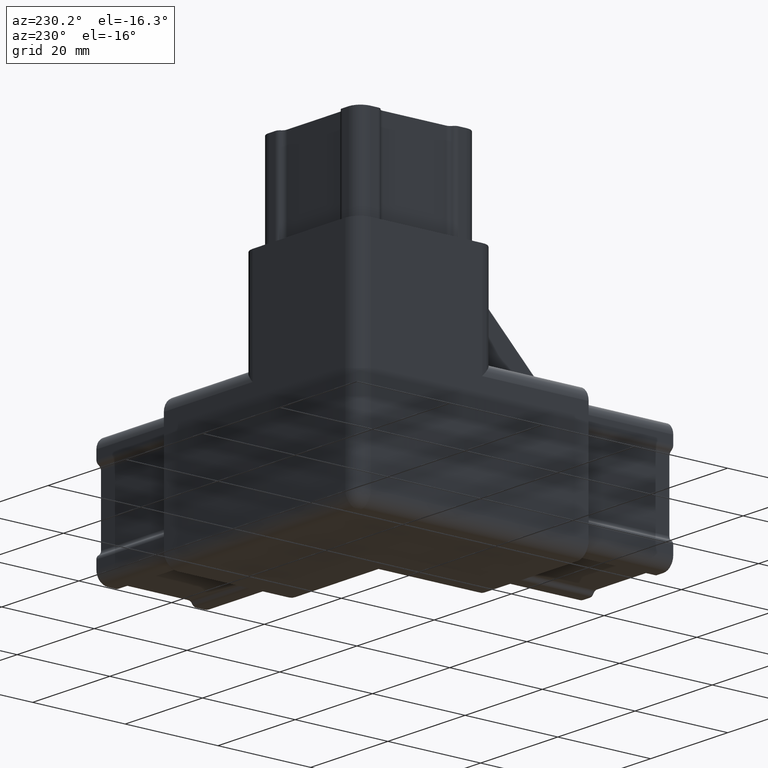
[diagram: clean part render]
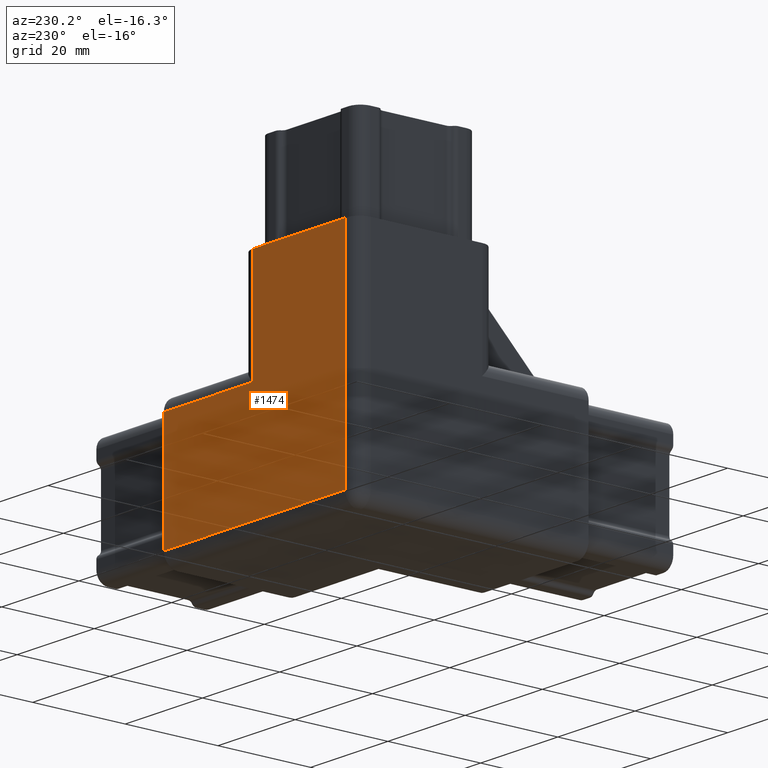
[diagram: same view with one face highlighted and labeled with its STEP entity id]
A machine part, auxiliary view. The second image highlights one B-rep face of the part: STEP entity #1474.
In plain terms, the highlighted planar face has unit normal (0, -1, -0).
Its self-contained STEP definition (entity closure, byte-faithful):
#37 = VERTEX_POINT ( 'NONE', #16820 ) ;
#293 = CARTESIAN_POINT ( 'NONE',  ( 50.00000000000000000, 50.00000000000000000, -18.66666666666662500 ) ) ;
#1072 = LINE ( 'NONE', #13799, #9037 ) ;
#1104 = DIRECTION ( 'NONE',  ( 0.0000000000000000000, 2.775557561562891400E-016, -1.000000000000000000 ) ) ;
#1420 = LINE ( 'NONE', #10958, #4939 ) ;
#1471 = VECTOR ( 'NONE', #13434, 1000.000000000000000 ) ;
#1474 = ADVANCED_FACE ( 'NONE', ( #13263 ), #8305, .F. ) ;
#1529 = CARTESIAN_POINT ( 'NONE',  ( 30.00000000000000000, 50.00000000000000000, -18.66666666666662500 ) ) ;
#1858 = DIRECTION ( 'NONE',  ( -1.000000000000000000, 0.0000000000000000000, 0.0000000000000000000 ) ) ;
#2167 = LINE ( 'NONE', #1529, #17728 ) ;
#2326 = ORIENTED_EDGE ( 'NONE', *, *, #6875, .F. ) ;
#2427 = EDGE_CURVE ( 'NONE', #37, #17921, #5282, .T. ) ;
#2816 = ORIENTED_EDGE ( 'NONE', *, *, #8575, .T. ) ;
#2855 = ORIENTED_EDGE ( 'NONE', *, *, #2427, .T. ) ;
#4535 = VERTEX_POINT ( 'NONE', #18084 ) ;
#4939 = VECTOR ( 'NONE', #15540, 1000.000000000000000 ) ;
#4976 = VERTEX_POINT ( 'NONE', #293 ) ;
#5282 = LINE ( 'NONE', #14242, #9046 ) ;
#6239 = CARTESIAN_POINT ( 'NONE',  ( 27.00000000000000000, 49.99999999999998600, 28.33333333333337800 ) ) ;
#6875 = EDGE_CURVE ( 'NONE', #19300, #15231, #1072, .T. ) ;
#6886 = ORIENTED_EDGE ( 'NONE', *, *, #10731, .T. ) ;
#7088 = CARTESIAN_POINT ( 'NONE',  ( 2.999999999999999100, 49.99999999999998600, 28.33333333333337800 ) ) ;
#7123 = CARTESIAN_POINT ( 'NONE',  ( 50.00000000000000000, 50.00000000000000000, 8.333333333333373000 ) ) ;
#7781 = ORIENTED_EDGE ( 'NONE', *, *, #11466, .F. ) ;
#8026 = LINE ( 'NONE', #7123, #11067 ) ;
#8305 = PLANE ( 'NONE',  #15113 ) ;
#8575 = EDGE_CURVE ( 'NONE', #4535, #15231, #9441, .T. ) ;
#9037 = VECTOR ( 'NONE', #10786, 1000.000000000000000 ) ;
#9046 = VECTOR ( 'NONE', #17193, 1000.000000000000000 ) ;
#9441 = LINE ( 'NONE', #13506, #1471 ) ;
#10731 = EDGE_CURVE ( 'NONE', #4976, #4535, #2167, .T. ) ;
#10786 = DIRECTION ( 'NONE',  ( -1.000000000000000000, -0.0000000000000000000, -0.0000000000000000000 ) ) ;
#10958 = CARTESIAN_POINT ( 'NONE',  ( 27.00000000000000000, 49.99999999999999300, 8.333333333333369500 ) ) ;
#11067 = VECTOR ( 'NONE', #19178, 1000.000000000000000 ) ;
#11466 = EDGE_CURVE ( 'NONE', #4976, #17921, #8026, .T. ) ;
#12248 = EDGE_CURVE ( 'NONE', #19300, #37, #1420, .T. ) ;
#12975 = CARTESIAN_POINT ( 'NONE',  ( 50.00000000000000000, 50.00000000000000000, 5.333333333333373000 ) ) ;
#13263 = FACE_OUTER_BOUND ( 'NONE', #14828, .T. ) ;
#13434 = DIRECTION ( 'NONE',  ( 0.0000000000000000000, -2.775557561562891400E-016, 1.000000000000000000 ) ) ;
#13506 = CARTESIAN_POINT ( 'NONE',  ( 2.999999999999999100, 50.00000000000000000, -21.66666666666662500 ) ) ;
#13799 = CARTESIAN_POINT ( 'NONE',  ( 30.00000000000000000, 49.99999999999998600, 28.33333333333337800 ) ) ;
#14242 = CARTESIAN_POINT ( 'NONE',  ( 30.00000000000000000, 49.99999999999999300, 5.333333333333373900 ) ) ;
#14340 = ORIENTED_EDGE ( 'NONE', *, *, #12248, .T. ) ;
#14828 = EDGE_LOOP ( 'NONE', ( #6886, #2816, #2326, #14340, #2855, #7781 ) ) ;
#15113 = AXIS2_PLACEMENT_3D ( 'NONE', #19061, #18877, #1104 ) ;
#15231 = VERTEX_POINT ( 'NONE', #7088 ) ;
#15540 = DIRECTION ( 'NONE',  ( -0.0000000000000000000, 2.775557561562891400E-016, -1.000000000000000000 ) ) ;
#16820 = CARTESIAN_POINT ( 'NONE',  ( 27.00000000000000000, 49.99999999999999300, 5.333333333333373000 ) ) ;
#17193 = DIRECTION ( 'NONE',  ( 1.000000000000000000, -0.0000000000000000000, -0.0000000000000000000 ) ) ;
#17728 = VECTOR ( 'NONE', #1858, 1000.000000000000000 ) ;
#17921 = VERTEX_POINT ( 'NONE', #12975 ) ;
#18084 = CARTESIAN_POINT ( 'NONE',  ( 2.999999999999999100, 50.00000000000000000, -18.66666666666662500 ) ) ;
#18877 = DIRECTION ( 'NONE',  ( 0.0000000000000000000, -1.000000000000000000, -2.775557561562891400E-016 ) ) ;
#19061 = CARTESIAN_POINT ( 'NONE',  ( 30.00000000000000000, 50.00000000000000000, -21.66666666666662500 ) ) ;
#19178 = DIRECTION ( 'NONE',  ( -0.0000000000000000000, -0.0000000000000000000, 1.000000000000000000 ) ) ;
#19300 = VERTEX_POINT ( 'NONE', #6239 ) ;